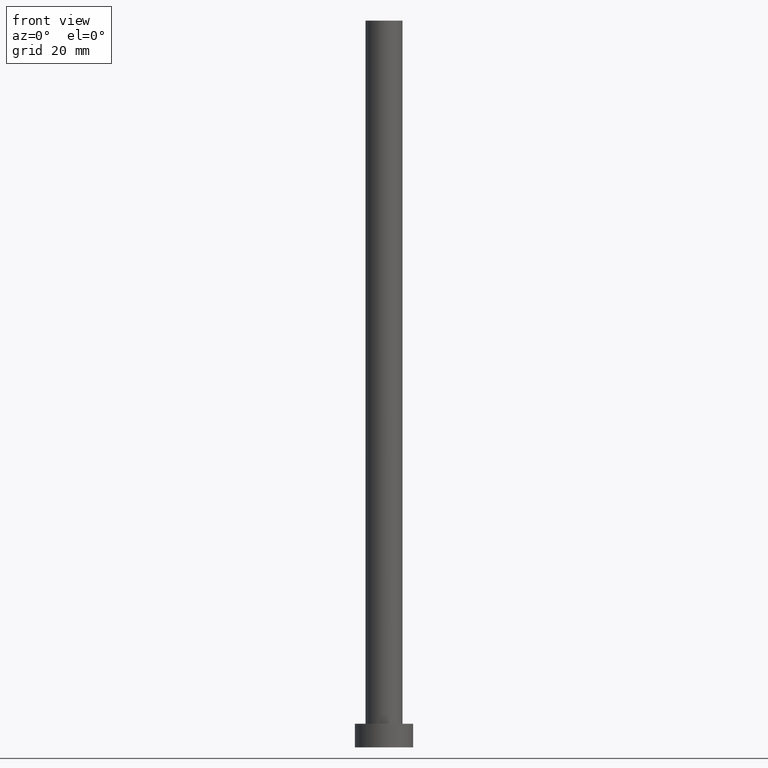
[diagram: clean part render]
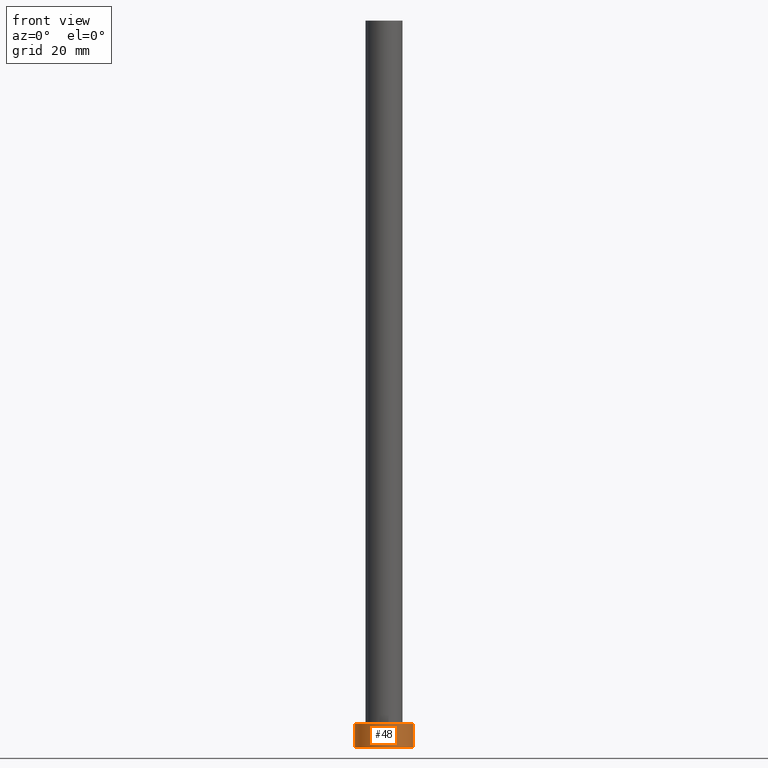
[diagram: same view with one face highlighted and labeled with its STEP entity id]
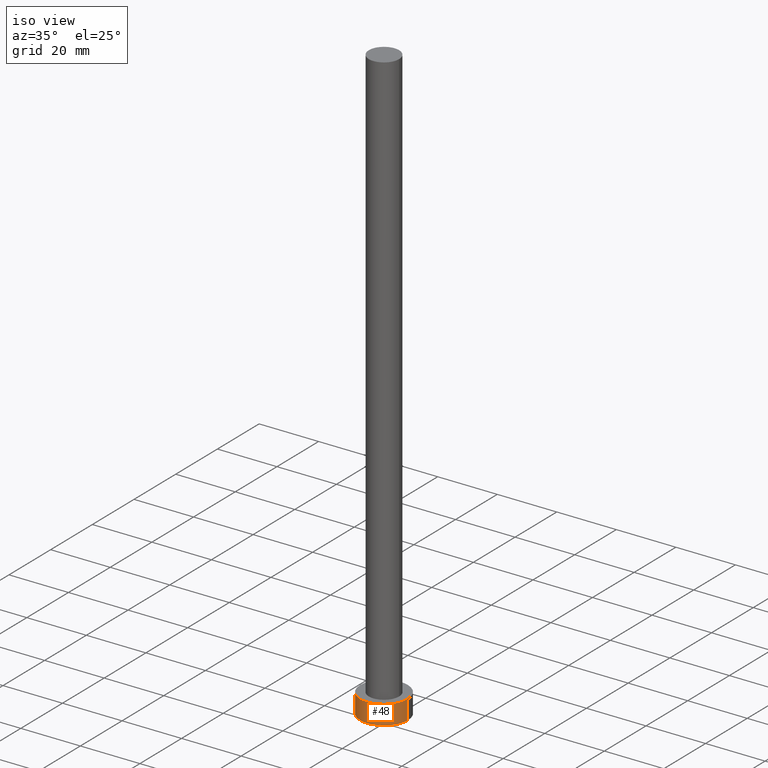
[diagram: same view with one face highlighted and labeled with its STEP entity id]
A machine part, front view. The second image highlights one B-rep face of the part: STEP entity #48.
A second angle (iso view) of the same face is appended — the face is thin or edge-on in the first view.
In plain terms, the highlighted cylindrical surface (edge-blend (fillet) strip) has radius 8 mm, axis along (-0, -0, -1).
Its self-contained STEP definition (entity closure, byte-faithful):
#1 = AXIS2_PLACEMENT_3D ( 'NONE', #116, #217, #244 ) ;
#5 = CARTESIAN_POINT ( 'NONE',  ( 8.000000000000000000, 9.797174393178823685E-16, 6.500000000000000000 ) ) ;
#8 = EDGE_CURVE ( 'NONE', #29, #190, #60, .T. ) ;
#29 = VERTEX_POINT ( 'NONE', #5 ) ;
#32 = ORIENTED_EDGE ( 'NONE', *, *, #195, .T. ) ;
#35 = FACE_OUTER_BOUND ( 'NONE', #50, .T. ) ;
#39 = CARTESIAN_POINT ( 'NONE',  ( 8.000000000000000000, 9.797174393178823685E-16, 0.000000000000000000 ) ) ;
#40 = CARTESIAN_POINT ( 'NONE',  ( 0.000000000000000000, 0.000000000000000000, 0.000000000000000000 ) ) ;
#46 = ORIENTED_EDGE ( 'NONE', *, *, #63, .T. ) ;
#48 = ADVANCED_FACE ( 'NONE', ( #35 ), #170, .T. ) ;
#50 = EDGE_LOOP ( 'NONE', ( #197, #125, #46, #32 ) ) ;
#52 = AXIS2_PLACEMENT_3D ( 'NONE', #40, #232, #231 ) ;
#56 = DIRECTION ( 'NONE',  ( 0.000000000000000000, 0.000000000000000000, 1.000000000000000000 ) ) ;
#58 = VECTOR ( 'NONE', #168, 1000.000000000000000 ) ;
#60 = LINE ( 'NONE', #110, #95 ) ;
#63 = EDGE_CURVE ( 'NONE', #132, #143, #219, .T. ) ;
#85 = DIRECTION ( 'NONE',  ( -0.000000000000000000, -0.000000000000000000, -1.000000000000000000 ) ) ;
#95 = VECTOR ( 'NONE', #85, 1000.000000000000000 ) ;
#101 = CARTESIAN_POINT ( 'NONE',  ( -8.000000000000000000, 0.000000000000000000, 0.000000000000000000 ) ) ;
#104 = EDGE_CURVE ( 'NONE', #132, #29, #203, .T. ) ;
#110 = CARTESIAN_POINT ( 'NONE',  ( 8.000000000000000000, 9.797174393178823685E-16, 6.500000000000000000 ) ) ;
#111 = AXIS2_PLACEMENT_3D ( 'NONE', #247, #56, #134 ) ;
#116 = CARTESIAN_POINT ( 'NONE',  ( 0.000000000000000000, 0.000000000000000000, 6.500000000000000000 ) ) ;
#125 = ORIENTED_EDGE ( 'NONE', *, *, #104, .F. ) ;
#132 = VERTEX_POINT ( 'NONE', #208 ) ;
#134 = DIRECTION ( 'NONE',  ( 1.000000000000000000, 0.000000000000000000, 0.000000000000000000 ) ) ;
#143 = VERTEX_POINT ( 'NONE', #101 ) ;
#168 = DIRECTION ( 'NONE',  ( -0.000000000000000000, -0.000000000000000000, -1.000000000000000000 ) ) ;
#170 = CYLINDRICAL_SURFACE ( 'NONE', #1, 8.000000000000000000 ) ;
#190 = VERTEX_POINT ( 'NONE', #39 ) ;
#195 = EDGE_CURVE ( 'NONE', #143, #190, #248, .T. ) ;
#197 = ORIENTED_EDGE ( 'NONE', *, *, #8, .F. ) ;
#202 = CARTESIAN_POINT ( 'NONE',  ( -8.000000000000000000, 0.000000000000000000, 6.500000000000000000 ) ) ;
#203 = CIRCLE ( 'NONE', #111, 8.000000000000000000 ) ;
#208 = CARTESIAN_POINT ( 'NONE',  ( -8.000000000000000000, 0.000000000000000000, 6.500000000000000000 ) ) ;
#217 = DIRECTION ( 'NONE',  ( -0.000000000000000000, -0.000000000000000000, -1.000000000000000000 ) ) ;
#219 = LINE ( 'NONE', #202, #58 ) ;
#231 = DIRECTION ( 'NONE',  ( 1.000000000000000000, 0.000000000000000000, 0.000000000000000000 ) ) ;
#232 = DIRECTION ( 'NONE',  ( 0.000000000000000000, 0.000000000000000000, 1.000000000000000000 ) ) ;
#244 = DIRECTION ( 'NONE',  ( -1.000000000000000000, 0.000000000000000000, 0.000000000000000000 ) ) ;
#247 = CARTESIAN_POINT ( 'NONE',  ( 0.000000000000000000, 0.000000000000000000, 6.500000000000000000 ) ) ;
#248 = CIRCLE ( 'NONE', #52, 8.000000000000000000 ) ;